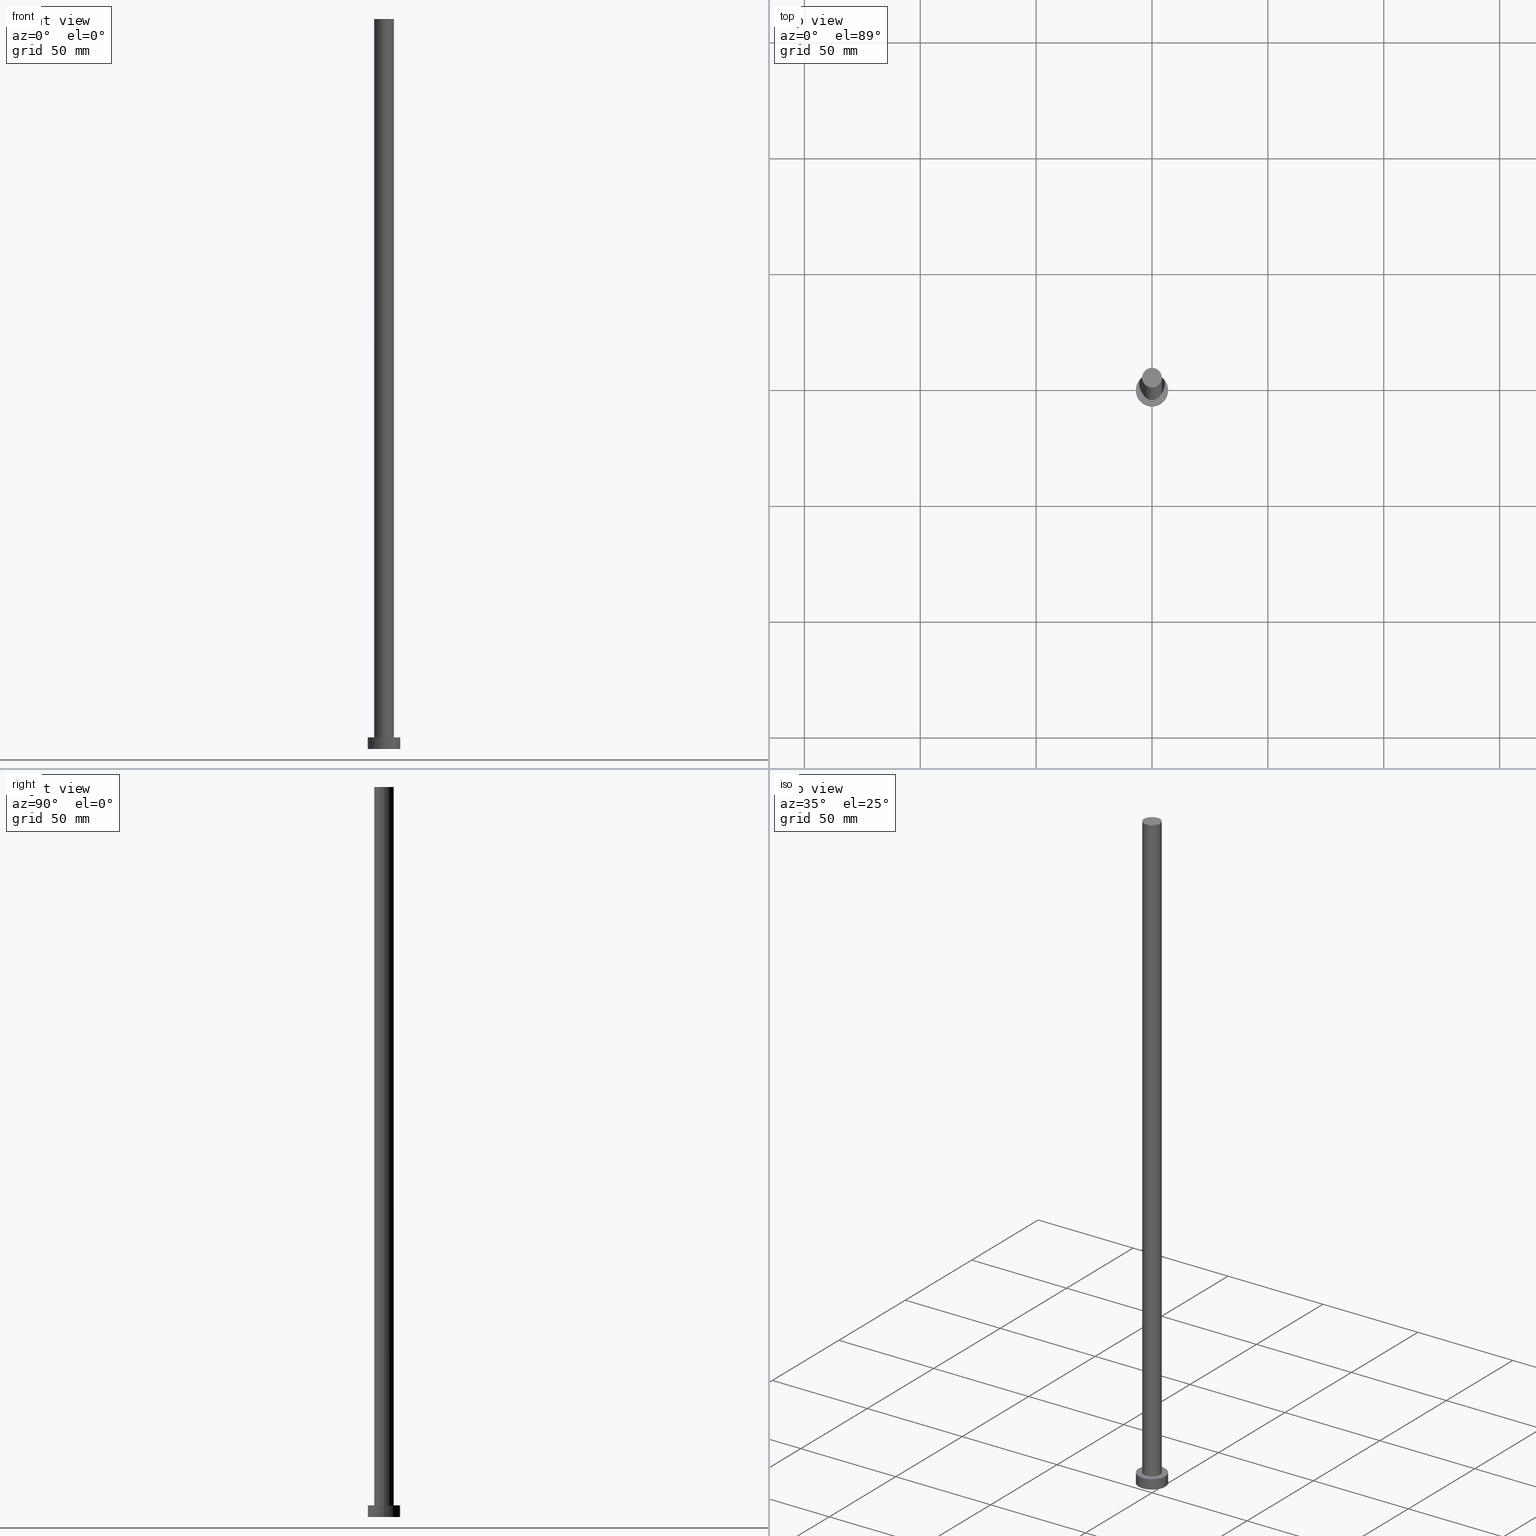
[diagram: canonical four-view strip — front | top / right | iso, engineering-drawing reading convention]
A machine part, canonical four-view strip (front | top / right | iso — engineering-drawing reading convention). The complete STEP part file that produces these views, byte-faithful:
ISO-10303-21;
HEADER;
FILE_DESCRIPTION (( 'STEP AP203' ),
    '1' );
FILE_NAME ('876c.STEP',
    '2023-02-13T13:52:59',
    ( '' ),
    ( '' ),
    'SwSTEP 2.0',
    'SolidWorks 2019',
    '' );
FILE_SCHEMA (( 'CONFIG_CONTROL_DESIGN' ));
ENDSEC;

DATA;
#1 = ORIENTED_EDGE ( 'NONE', *, *, #66, .F. ) ;
#2 = VERTEX_POINT ( 'NONE', #238 ) ;
#3 = PRODUCT_RELATED_PRODUCT_CATEGORY ( 'detail', '', ( #45 ) ) ;
#4 = ORIENTED_EDGE ( 'NONE', *, *, #109, .F. ) ;
#5 = LOCAL_TIME ( 14, 52, 59.00000000000000000, #30 ) ;
#6 = ORIENTED_EDGE ( 'NONE', *, *, #92, .T. ) ;
#7 = DIRECTION ( 'NONE',  ( -0.000000000000000000, -0.000000000000000000, -1.000000000000000000 ) ) ;
#8 = CARTESIAN_POINT ( 'NONE',  ( 7.000000000000000000, 8.572527594031473190E-16, 5.000000000000000000 ) ) ;
#9 = PRODUCT_DEFINITION ( 'NEZN�M�', '', #81, #175 ) ;
#10 = AXIS2_PLACEMENT_3D ( 'NONE', #24, #11, #182 ) ;
#11 = DIRECTION ( 'NONE',  ( -0.000000000000000000, -0.000000000000000000, -1.000000000000000000 ) ) ;
#12 = APPLICATION_CONTEXT ( 'configuration controlled 3d designs of mechanical parts and assemblies' ) ;
#13 = FACE_OUTER_BOUND ( 'NONE', #172, .T. ) ;
#14 = ADVANCED_FACE ( 'NONE', ( #113 ), #114, .F. ) ;
#15 = CARTESIAN_POINT ( 'NONE',  ( 0.000000000000000000, 0.000000000000000000, 5.000000000000000000 ) ) ;
#16 = VECTOR ( 'NONE', #100, 1000.000000000000000 ) ;
#17 = VECTOR ( 'NONE', #82, 1000.000000000000000 ) ;
#18 = PERSON_AND_ORGANIZATION ( #232, #94 ) ;
#19 = ORIENTED_EDGE ( 'NONE', *, *, #163, .T. ) ;
#20 = VERTEX_POINT ( 'NONE', #137 ) ;
#21 = VERTEX_POINT ( 'NONE', #37 ) ;
#22 = DIRECTION ( 'NONE',  ( -0.000000000000000000, -0.000000000000000000, -1.000000000000000000 ) ) ;
#23 = APPROVAL ( #33, 'NEUR�EN�' ) ;
#24 = CARTESIAN_POINT ( 'NONE',  ( 0.000000000000000000, 0.000000000000000000, 5.000000000000000000 ) ) ;
#25 = CARTESIAN_POINT ( 'NONE',  ( 4.250000000000000000, 5.204748896376250699E-16, 315.0000000000000000 ) ) ;
#26 = DIRECTION ( 'NONE',  ( 0.000000000000000000, 0.000000000000000000, 1.000000000000000000 ) ) ;
#27 = EDGE_CURVE ( 'NONE', #49, #2, #70, .T. ) ;
#28 = CARTESIAN_POINT ( 'NONE',  ( 0.000000000000000000, 0.000000000000000000, 315.0000000000000000 ) ) ;
#29 = APPROVAL_ROLE ( '' ) ;
#30 = COORDINATED_UNIVERSAL_TIME_OFFSET ( 1, 0, .AHEAD. ) ;
#31 = CIRCLE ( 'NONE', #239, 4.250000000000000000 ) ;
#32 = CARTESIAN_POINT ( 'NONE',  ( 0.000000000000000000, 0.000000000000000000, 0.000000000000000000 ) ) ;
#33 = APPROVAL_STATUS ( 'not_yet_approved' ) ;
#34 = DIRECTION ( 'NONE',  ( 1.000000000000000000, 0.000000000000000000, 0.000000000000000000 ) ) ;
#35 = APPROVAL_DATE_TIME ( #48, #144 ) ;
#36 = ORIENTED_EDGE ( 'NONE', *, *, #191, .T. ) ;
#37 = CARTESIAN_POINT ( 'NONE',  ( -7.000000000000000000, 0.000000000000000000, 5.000000000000000000 ) ) ;
#38 = ORIENTED_EDGE ( 'NONE', *, *, #253, .T. ) ;
#39 = DIRECTION ( 'NONE',  ( 1.000000000000000000, 0.000000000000000000, -0.000000000000000000 ) ) ;
#40 = CARTESIAN_POINT ( 'NONE',  ( 0.000000000000000000, 0.000000000000000000, 0.000000000000000000 ) ) ;
#41 = DIRECTION ( 'NONE',  ( -1.000000000000000000, 0.000000000000000000, 0.000000000000000000 ) ) ;
#42 = FACE_OUTER_BOUND ( 'NONE', #93, .T. ) ;
#43 = CARTESIAN_POINT ( 'NONE',  ( 0.000000000000000000, 0.000000000000000000, 5.000000000000000000 ) ) ;
#44 = APPROVAL_DATE_TIME ( #102, #230 ) ;
#45 = PRODUCT ( '876c', '876c', '', ( #189 ) ) ;
#46 = CALENDAR_DATE ( 2023, 13, 2 ) ;
#47 = CALENDAR_DATE ( 2023, 13, 2 ) ;
#48 = DATE_AND_TIME ( #133, #146 ) ;
#49 = VERTEX_POINT ( 'NONE', #196 ) ;
#50 = VERTEX_POINT ( 'NONE', #173 ) ;
#51 = CARTESIAN_POINT ( 'NONE',  ( 0.000000000000000000, 0.000000000000000000, 5.000000000000000000 ) ) ;
#52 = CC_DESIGN_PERSON_AND_ORGANIZATION_ASSIGNMENT ( #64, #206, ( #229 ) ) ;
#53 = CIRCLE ( 'NONE', #201, 7.000000000000000000 ) ;
#54 = ORIENTED_EDGE ( 'NONE', *, *, #66, .T. ) ;
#55 = CARTESIAN_POINT ( 'NONE',  ( 0.000000000000000000, 0.000000000000000000, 0.000000000000000000 ) ) ;
#56 = FACE_BOUND ( 'NONE', #74, .T. ) ;
#57 = CIRCLE ( 'NONE', #159, 7.000000000000000000 ) ;
#58 = CARTESIAN_POINT ( 'NONE',  ( -7.000000000000000000, 0.000000000000000000, 5.000000000000000000 ) ) ;
#59 = LOCAL_TIME ( 14, 52, 59.00000000000000000, #192 ) ;
#60 = CARTESIAN_POINT ( 'NONE',  ( -7.000000000000000000, 0.000000000000000000, 0.000000000000000000 ) ) ;
#61 = FACE_OUTER_BOUND ( 'NONE', #71, .T. ) ;
#62 = CARTESIAN_POINT ( 'NONE',  ( -4.250000000000000000, 0.000000000000000000, 315.0000000000000000 ) ) ;
#63 = MANIFOLD_SOLID_BREP ( 'P�idat vysunut�m3', #155 ) ;
#64 = PERSON_AND_ORGANIZATION ( #232, #94 ) ;
#65 = APPLICATION_CONTEXT ( 'configuration controlled 3d designs of mechanical parts and assemblies' ) ;
#66 = EDGE_CURVE ( 'NONE', #157, #21, #57, .T. ) ;
#67 = PERSON_AND_ORGANIZATION_ROLE ( 'design_owner' ) ;
#68 = PERSON_AND_ORGANIZATION_ROLE ( 'creator' ) ;
#69 = CALENDAR_DATE ( 2023, 13, 2 ) ;
#70 = CIRCLE ( 'NONE', #170, 4.250000000000000000 ) ;
#71 = EDGE_LOOP ( 'NONE', ( #110, #78, #171, #38 ) ) ;
#72 = APPROVAL_PERSON_ORGANIZATION ( #86, #230, #103 ) ;
#73 =( GEOMETRIC_REPRESENTATION_CONTEXT ( 3 ) GLOBAL_UNCERTAINTY_ASSIGNED_CONTEXT ( ( #218 ) ) GLOBAL_UNIT_ASSIGNED_CONTEXT ( ( #148, #248, #185 ) ) REPRESENTATION_CONTEXT ( 'NONE', 'WORKASPACE' ) );
#74 = EDGE_LOOP ( 'NONE', ( #255, #156 ) ) ;
#75 = ORIENTED_EDGE ( 'NONE', *, *, #101, .T. ) ;
#76 = ORIENTED_EDGE ( 'NONE', *, *, #163, .F. ) ;
#77 = ADVANCED_FACE ( 'NONE', ( #61 ), #247, .T. ) ;
#78 = ORIENTED_EDGE ( 'NONE', *, *, #119, .F. ) ;
#79 = DIRECTION ( 'NONE',  ( -0.000000000000000000, -0.000000000000000000, -1.000000000000000000 ) ) ;
#80 = PLANE ( 'NONE',  #151 ) ;
#81 = PRODUCT_DEFINITION_FORMATION_WITH_SPECIFIED_SOURCE ( 'LIBOVOLN�', '', #45, .NOT_KNOWN. ) ;
#82 = DIRECTION ( 'NONE',  ( -0.000000000000000000, -0.000000000000000000, -1.000000000000000000 ) ) ;
#83 = CARTESIAN_POINT ( 'NONE',  ( -4.250000000000000000, 0.000000000000000000, 315.0000000000000000 ) ) ;
#84 = LINE ( 'NONE', #8, #16 ) ;
#85 = CC_DESIGN_PERSON_AND_ORGANIZATION_ASSIGNMENT ( #152, #126, ( #81 ) ) ;
#86 = PERSON_AND_ORGANIZATION ( #232, #94 ) ;
#87 = APPROVAL_STATUS ( 'not_yet_approved' ) ;
#88 = PERSON_AND_ORGANIZATION_ROLE ( 'creator' ) ;
#89 = APPROVAL_PERSON_ORGANIZATION ( #18, #23, #29 ) ;
#90 = ORIENTED_EDGE ( 'NONE', *, *, #92, .F. ) ;
#91 = LOCAL_TIME ( 14, 52, 59.00000000000000000, #187 ) ;
#92 = EDGE_CURVE ( 'NONE', #20, #49, #116, .T. ) ;
#93 = EDGE_LOOP ( 'NONE', ( #1, #36, #138, #4 ) ) ;
#94 = ORGANIZATION ( 'NEUR�EN�', 'NEUR�EN�', '' ) ;
#95 = CARTESIAN_POINT ( 'NONE',  ( 0.000000000000000000, 0.000000000000000000, 315.0000000000000000 ) ) ;
#96 = DIRECTION ( 'NONE',  ( 0.000000000000000000, 0.000000000000000000, 1.000000000000000000 ) ) ;
#97 = LINE ( 'NONE', #58, #251 ) ;
#98 = ADVANCED_FACE ( 'NONE', ( #197 ), #222, .T. ) ;
#99 = DIRECTION ( 'NONE',  ( 1.000000000000000000, 0.000000000000000000, -0.000000000000000000 ) ) ;
#100 = DIRECTION ( 'NONE',  ( -0.000000000000000000, -0.000000000000000000, -1.000000000000000000 ) ) ;
#101 = EDGE_CURVE ( 'NONE', #20, #136, #128, .T. ) ;
#102 = DATE_AND_TIME ( #252, #5 ) ;
#103 = APPROVAL_ROLE ( '' ) ;
#104 = DIRECTION ( 'NONE',  ( 0.000000000000000000, 0.000000000000000000, 1.000000000000000000 ) ) ;
#105 = DATE_AND_TIME ( #46, #160 ) ;
#106 = CC_DESIGN_APPROVAL ( #23, ( #9 ) ) ;
#107 = SHAPE_DEFINITION_REPRESENTATION ( #176, #112 ) ;
#108 = VERTEX_POINT ( 'NONE', #60 ) ;
#109 = EDGE_CURVE ( 'NONE', #21, #108, #97, .T. ) ;
#110 = ORIENTED_EDGE ( 'NONE', *, *, #191, .F. ) ;
#111 = AXIS2_PLACEMENT_3D ( 'NONE', #164, #22, #41 ) ;
#112 = ADVANCED_BREP_SHAPE_REPRESENTATION ( '876c', ( #63, #221 ), #73 ) ;
#113 = FACE_OUTER_BOUND ( 'NONE', #216, .T. ) ;
#114 = PLANE ( 'NONE',  #184 ) ;
#115 = ORIENTED_EDGE ( 'NONE', *, *, #101, .F. ) ;
#116 = LINE ( 'NONE', #25, #190 ) ;
#117 = AXIS2_PLACEMENT_3D ( 'NONE', #40, #246, #118 ) ;
#118 = DIRECTION ( 'NONE',  ( 1.000000000000000000, 0.000000000000000000, 0.000000000000000000 ) ) ;
#119 = EDGE_CURVE ( 'NONE', #21, #157, #53, .T. ) ;
#120 = DIRECTION ( 'NONE',  ( 1.000000000000000000, 0.000000000000000000, 0.000000000000000000 ) ) ;
#121 = AXIS2_PLACEMENT_3D ( 'NONE', #180, #243, #200 ) ;
#122 = DIRECTION ( 'NONE',  ( -1.000000000000000000, 0.000000000000000000, 0.000000000000000000 ) ) ;
#123 = CC_DESIGN_APPROVAL ( #230, ( #81 ) ) ;
#124 = CARTESIAN_POINT ( 'NONE',  ( 7.000000000000000000, 8.572527594031473190E-16, 5.000000000000000000 ) ) ;
#125 = CC_DESIGN_DATE_AND_TIME_ASSIGNMENT ( #132, #209, ( #229 ) ) ;
#126 = PERSON_AND_ORGANIZATION_ROLE ( 'design_supplier' ) ;
#127 = APPROVAL_DATE_TIME ( #105, #23 ) ;
#128 = CIRCLE ( 'NONE', #149, 4.250000000000000000 ) ;
#129 = CC_DESIGN_SECURITY_CLASSIFICATION ( #229, ( #81 ) ) ;
#130 = COORDINATED_UNIVERSAL_TIME_OFFSET ( 1, 0, .AHEAD. ) ;
#131 = CC_DESIGN_PERSON_AND_ORGANIZATION_ASSIGNMENT ( #250, #67, ( #45 ) ) ;
#132 = DATE_AND_TIME ( #47, #91 ) ;
#133 = CALENDAR_DATE ( 2023, 13, 2 ) ;
#134 = EDGE_LOOP ( 'NONE', ( #90, #194, #19, #174 ) ) ;
#135 = CC_DESIGN_PERSON_AND_ORGANIZATION_ASSIGNMENT ( #233, #68, ( #81 ) ) ;
#136 = VERTEX_POINT ( 'NONE', #62 ) ;
#137 = CARTESIAN_POINT ( 'NONE',  ( 4.250000000000000000, 5.204748896376250699E-16, 315.0000000000000000 ) ) ;
#138 = ORIENTED_EDGE ( 'NONE', *, *, #169, .T. ) ;
#139 = ORIENTED_EDGE ( 'NONE', *, *, #253, .F. ) ;
#140 = CARTESIAN_POINT ( 'NONE',  ( 0.000000000000000000, 0.000000000000000000, 5.000000000000000000 ) ) ;
#141 = DIRECTION ( 'NONE',  ( 1.000000000000000000, 0.000000000000000000, 0.000000000000000000 ) ) ;
#142 = FACE_OUTER_BOUND ( 'NONE', #134, .T. ) ;
#143 = CARTESIAN_POINT ( 'NONE',  ( 0.000000000000000000, 0.000000000000000000, 5.000000000000000000 ) ) ;
#144 = APPROVAL ( #147, 'NEUR�EN�' ) ;
#145 = PLANE ( 'NONE',  #234 ) ;
#146 = LOCAL_TIME ( 14, 52, 59.00000000000000000, #211 ) ;
#147 = APPROVAL_STATUS ( 'not_yet_approved' ) ;
#148 =( LENGTH_UNIT ( ) NAMED_UNIT ( * ) SI_UNIT ( .MILLI., .METRE. ) );
#149 = AXIS2_PLACEMENT_3D ( 'NONE', #95, #245, #141 ) ;
#150 = ADVANCED_FACE ( 'NONE', ( #142 ), #223, .T. ) ;
#151 = AXIS2_PLACEMENT_3D ( 'NONE', #242, #26, #99 ) ;
#152 = PERSON_AND_ORGANIZATION ( #232, #94 ) ;
#153 = DATE_TIME_ROLE ( 'creation_date' ) ;
#154 = ADVANCED_FACE ( 'NONE', ( #42 ), #220, .T. ) ;
#155 = CLOSED_SHELL ( 'NONE', ( #98, #154, #77, #240, #14, #150, #214 ) ) ;
#156 = ORIENTED_EDGE ( 'NONE', *, *, #27, .F. ) ;
#157 = VERTEX_POINT ( 'NONE', #124 ) ;
#158 = DIRECTION ( 'NONE',  ( 1.000000000000000000, 0.000000000000000000, 0.000000000000000000 ) ) ;
#159 = AXIS2_PLACEMENT_3D ( 'NONE', #15, #203, #224 ) ;
#160 = LOCAL_TIME ( 14, 52, 59.00000000000000000, #130 ) ;
#161 = ORIENTED_EDGE ( 'NONE', *, *, #169, .F. ) ;
#162 = DIRECTION ( 'NONE',  ( 0.000000000000000000, 0.000000000000000000, 1.000000000000000000 ) ) ;
#163 = EDGE_CURVE ( 'NONE', #136, #2, #202, .T. ) ;
#164 = CARTESIAN_POINT ( 'NONE',  ( 0.000000000000000000, 0.000000000000000000, 315.0000000000000000 ) ) ;
#165 = DIRECTION ( 'NONE',  ( 1.000000000000000000, 0.000000000000000000, 0.000000000000000000 ) ) ;
#166 = FACE_OUTER_BOUND ( 'NONE', #193, .T. ) ;
#167 = PERSON_AND_ORGANIZATION ( #232, #94 ) ;
#168 = EDGE_CURVE ( 'NONE', #136, #20, #198, .T. ) ;
#169 = EDGE_CURVE ( 'NONE', #50, #108, #210, .T. ) ;
#170 = AXIS2_PLACEMENT_3D ( 'NONE', #51, #215, #158 ) ;
#171 = ORIENTED_EDGE ( 'NONE', *, *, #109, .T. ) ;
#172 = EDGE_LOOP ( 'NONE', ( #217, #54 ) ) ;
#173 = CARTESIAN_POINT ( 'NONE',  ( 7.000000000000000000, 8.572527594031473190E-16, 0.000000000000000000 ) ) ;
#174 = ORIENTED_EDGE ( 'NONE', *, *, #177, .T. ) ;
#175 = DESIGN_CONTEXT ( 'detailed design', #65, 'design' ) ;
#176 = PRODUCT_DEFINITION_SHAPE ( 'NONE', 'NONE',  #9 ) ;
#177 = EDGE_CURVE ( 'NONE', #2, #49, #31, .T. ) ;
#178 = DIRECTION ( 'NONE',  ( -0.000000000000000000, -0.000000000000000000, -1.000000000000000000 ) ) ;
#179 = DIRECTION ( 'NONE',  ( 1.000000000000000000, 0.000000000000000000, 0.000000000000000000 ) ) ;
#180 = CARTESIAN_POINT ( 'NONE',  ( 0.000000000000000000, 0.000000000000000000, 315.0000000000000000 ) ) ;
#181 = APPROVAL_PERSON_ORGANIZATION ( #167, #144, #226 ) ;
#182 = DIRECTION ( 'NONE',  ( -1.000000000000000000, 0.000000000000000000, 0.000000000000000000 ) ) ;
#183 = DIRECTION ( 'NONE',  ( 0.000000000000000000, 0.000000000000000000, 1.000000000000000000 ) ) ;
#184 = AXIS2_PLACEMENT_3D ( 'NONE', #55, #235, #237 ) ;
#185 =( NAMED_UNIT ( * ) SI_UNIT ( $, .STERADIAN. ) SOLID_ANGLE_UNIT ( ) );
#186 = CC_DESIGN_DATE_AND_TIME_ASSIGNMENT ( #204, #153, ( #9 ) ) ;
#187 = COORDINATED_UNIVERSAL_TIME_OFFSET ( 1, 0, .AHEAD. ) ;
#188 = DIRECTION ( 'NONE',  ( 0.000000000000000000, 0.000000000000000000, 1.000000000000000000 ) ) ;
#189 = MECHANICAL_CONTEXT ( 'NONE', #12, 'mechanical' ) ;
#190 = VECTOR ( 'NONE', #7, 1000.000000000000000 ) ;
#191 = EDGE_CURVE ( 'NONE', #157, #50, #84, .T. ) ;
#192 = COORDINATED_UNIVERSAL_TIME_OFFSET ( 1, 0, .AHEAD. ) ;
#193 = EDGE_LOOP ( 'NONE', ( #212, #75 ) ) ;
#194 = ORIENTED_EDGE ( 'NONE', *, *, #168, .F. ) ;
#195 = AXIS2_PLACEMENT_3D ( 'NONE', #28, #183, #165 ) ;
#196 = CARTESIAN_POINT ( 'NONE',  ( 4.250000000000000000, 5.204748896376250699E-16, 5.000000000000000000 ) ) ;
#197 = FACE_OUTER_BOUND ( 'NONE', #241, .T. ) ;
#198 = CIRCLE ( 'NONE', #195, 4.250000000000000000 ) ;
#199 = CARTESIAN_POINT ( 'NONE',  ( 0.000000000000000000, 0.000000000000000000, 5.000000000000000000 ) ) ;
#200 = DIRECTION ( 'NONE',  ( -1.000000000000000000, 0.000000000000000000, 0.000000000000000000 ) ) ;
#201 = AXIS2_PLACEMENT_3D ( 'NONE', #199, #162, #120 ) ;
#202 = LINE ( 'NONE', #83, #17 ) ;
#203 = DIRECTION ( 'NONE',  ( 0.000000000000000000, 0.000000000000000000, 1.000000000000000000 ) ) ;
#204 = DATE_AND_TIME ( #69, #59 ) ;
#205 = AXIS2_PLACEMENT_3D ( 'NONE', #43, #178, #122 ) ;
#206 = PERSON_AND_ORGANIZATION_ROLE ( 'classification_officer' ) ;
#207 = AXIS2_PLACEMENT_3D ( 'NONE', #228, #188, #34 ) ;
#208 = APPLICATION_PROTOCOL_DEFINITION ( 'international standard', 'config_control_design', 1994, #65 ) ;
#209 = DATE_TIME_ROLE ( 'classification_date' ) ;
#210 = CIRCLE ( 'NONE', #117, 7.000000000000000000 ) ;
#211 = COORDINATED_UNIVERSAL_TIME_OFFSET ( 1, 0, .AHEAD. ) ;
#212 = ORIENTED_EDGE ( 'NONE', *, *, #168, .T. ) ;
#213 = ORIENTED_EDGE ( 'NONE', *, *, #27, .T. ) ;
#214 = ADVANCED_FACE ( 'NONE', ( #166 ), #80, .T. ) ;
#215 = DIRECTION ( 'NONE',  ( 0.000000000000000000, 0.000000000000000000, 1.000000000000000000 ) ) ;
#216 = EDGE_LOOP ( 'NONE', ( #139, #161 ) ) ;
#217 = ORIENTED_EDGE ( 'NONE', *, *, #119, .T. ) ;
#218 = UNCERTAINTY_MEASURE_WITH_UNIT (LENGTH_MEASURE( 1.000000000000000082E-05 ), #148, 'distance_accuracy_value', 'NONE');
#219 = DIRECTION ( 'NONE',  ( 0.000000000000000000, 0.000000000000000000, 1.000000000000000000 ) ) ;
#220 = CYLINDRICAL_SURFACE ( 'NONE', #10, 7.000000000000000000 ) ;
#221 = AXIS2_PLACEMENT_3D ( 'NONE', #32, #104, #249 ) ;
#222 = CYLINDRICAL_SURFACE ( 'NONE', #111, 4.250000000000000000 ) ;
#223 = CYLINDRICAL_SURFACE ( 'NONE', #121, 4.250000000000000000 ) ;
#224 = DIRECTION ( 'NONE',  ( 1.000000000000000000, 0.000000000000000000, 0.000000000000000000 ) ) ;
#225 = CIRCLE ( 'NONE', #207, 7.000000000000000000 ) ;
#226 = APPROVAL_ROLE ( '' ) ;
#227 = APPLICATION_PROTOCOL_DEFINITION ( 'international standard', 'config_control_design', 1994, #12 ) ;
#228 = CARTESIAN_POINT ( 'NONE',  ( 0.000000000000000000, 0.000000000000000000, 0.000000000000000000 ) ) ;
#229 = SECURITY_CLASSIFICATION ( '', '', #231 ) ;
#230 = APPROVAL ( #87, 'NEUR�EN�' ) ;
#231 = SECURITY_CLASSIFICATION_LEVEL ( 'unclassified' ) ;
#232 = PERSON ( 'NEUR�EN�', 'NEUR�EN�', 'NEUR�EN�', ('NEUR�EN�'), ('NEUR�EN�'), ('NEUR�EN�') ) ;
#233 = PERSON_AND_ORGANIZATION ( #232, #94 ) ;
#234 = AXIS2_PLACEMENT_3D ( 'NONE', #140, #219, #39 ) ;
#235 = DIRECTION ( 'NONE',  ( 0.000000000000000000, 0.000000000000000000, 1.000000000000000000 ) ) ;
#236 = CC_DESIGN_PERSON_AND_ORGANIZATION_ASSIGNMENT ( #254, #88, ( #9 ) ) ;
#237 = DIRECTION ( 'NONE',  ( 1.000000000000000000, 0.000000000000000000, -0.000000000000000000 ) ) ;
#238 = CARTESIAN_POINT ( 'NONE',  ( -4.250000000000000000, 0.000000000000000000, 5.000000000000000000 ) ) ;
#239 = AXIS2_PLACEMENT_3D ( 'NONE', #143, #96, #179 ) ;
#240 = ADVANCED_FACE ( 'NONE', ( #56, #13 ), #145, .T. ) ;
#241 = EDGE_LOOP ( 'NONE', ( #115, #6, #213, #76 ) ) ;
#242 = CARTESIAN_POINT ( 'NONE',  ( 0.000000000000000000, 0.000000000000000000, 315.0000000000000000 ) ) ;
#243 = DIRECTION ( 'NONE',  ( -0.000000000000000000, -0.000000000000000000, -1.000000000000000000 ) ) ;
#244 = CC_DESIGN_APPROVAL ( #144, ( #229 ) ) ;
#245 = DIRECTION ( 'NONE',  ( 0.000000000000000000, 0.000000000000000000, 1.000000000000000000 ) ) ;
#246 = DIRECTION ( 'NONE',  ( 0.000000000000000000, 0.000000000000000000, 1.000000000000000000 ) ) ;
#247 = CYLINDRICAL_SURFACE ( 'NONE', #205, 7.000000000000000000 ) ;
#248 =( NAMED_UNIT ( * ) PLANE_ANGLE_UNIT ( ) SI_UNIT ( $, .RADIAN. ) );
#249 = DIRECTION ( 'NONE',  ( 1.000000000000000000, 0.000000000000000000, 0.000000000000000000 ) ) ;
#250 = PERSON_AND_ORGANIZATION ( #232, #94 ) ;
#251 = VECTOR ( 'NONE', #79, 1000.000000000000000 ) ;
#252 = CALENDAR_DATE ( 2023, 13, 2 ) ;
#253 = EDGE_CURVE ( 'NONE', #108, #50, #225, .T. ) ;
#254 = PERSON_AND_ORGANIZATION ( #232, #94 ) ;
#255 = ORIENTED_EDGE ( 'NONE', *, *, #177, .F. ) ;
ENDSEC;
END-ISO-10303-21;
